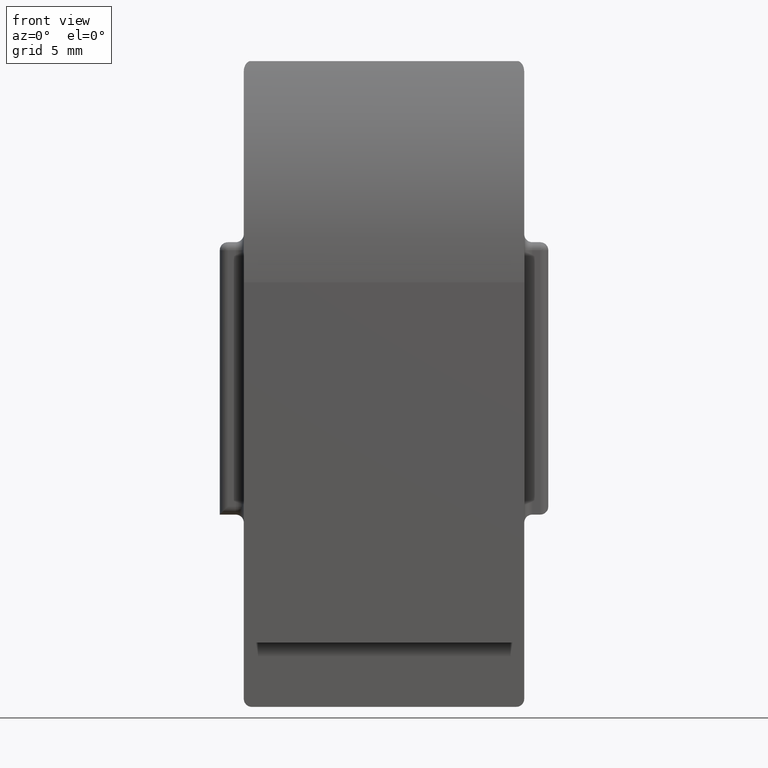
[diagram: clean part render]
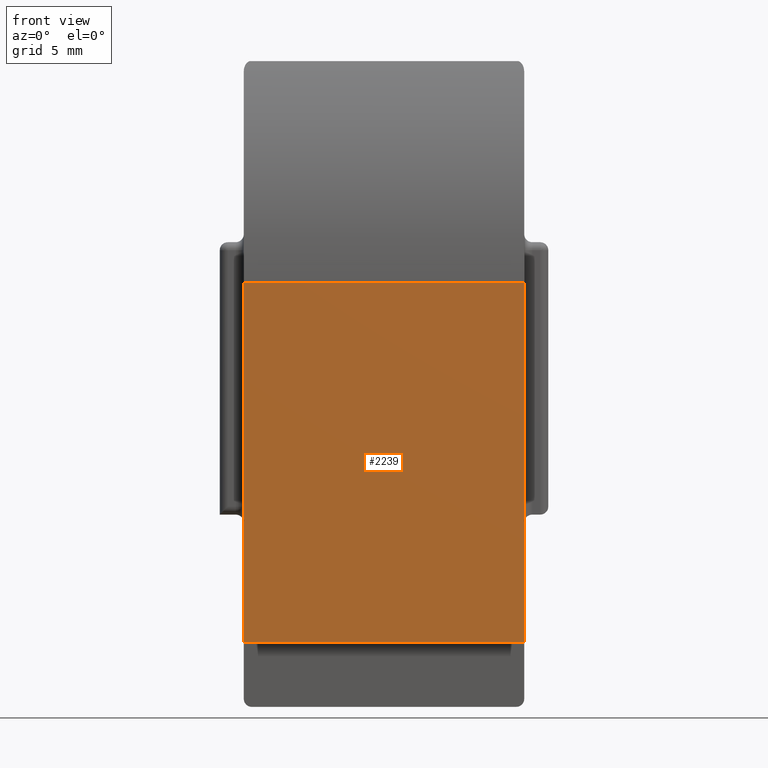
[diagram: same view with one face highlighted and labeled with its STEP entity id]
A machine part, front view. The second image highlights one B-rep face of the part: STEP entity #2239.
In plain terms, the highlighted planar face has unit normal (0, -1, -0).
Its self-contained STEP definition (entity closure, byte-faithful):
#25 = ORIENTED_EDGE ( 'NONE', *, *, #1617, .F. ) ;
#61 = ORIENTED_EDGE ( 'NONE', *, *, #1579, .F. ) ;
#141 = ORIENTED_EDGE ( 'NONE', *, *, #2814, .T. ) ;
#143 = ORIENTED_EDGE ( 'NONE', *, *, #668, .T. ) ;
#232 = VECTOR ( 'NONE', #2565, 1000.000000000000000 ) ;
#277 = LINE ( 'NONE', #2557, #232 ) ;
#329 = AXIS2_PLACEMENT_3D ( 'NONE', #511, #2661, #2491 ) ;
#444 = CARTESIAN_POINT ( 'NONE',  ( 17.50000000000000000, -1.040834085586084300E-014, -2.081668171172168500E-014 ) ) ;
#511 = CARTESIAN_POINT ( 'NONE',  ( 17.50000000000000000, -1.040834085586084300E-014, 0.0000000000000000000 ) ) ;
#558 = FACE_OUTER_BOUND ( 'NONE', #1425, .T. ) ;
#668 = EDGE_CURVE ( 'NONE', #3016, #1472, #277, .T. ) ;
#1021 = CARTESIAN_POINT ( 'NONE',  ( 0.0000000000000000000, -1.040834085586084300E-014, 0.0000000000000000000 ) ) ;
#1042 = DIRECTION ( 'NONE',  ( 0.0000000000000000000, -1.541976423090493200E-016, 1.000000000000000000 ) ) ;
#1065 = VECTOR ( 'NONE', #2868, 1000.000000000000000 ) ;
#1081 = CARTESIAN_POINT ( 'NONE',  ( 17.50000000000000000, -1.040834085586084300E-014, -2.081668171172168500E-014 ) ) ;
#1088 = DIRECTION ( 'NONE',  ( -1.000000000000000000, -0.0000000000000000000, -0.0000000000000000000 ) ) ;
#1181 = LINE ( 'NONE', #2941, #1065 ) ;
#1239 = CARTESIAN_POINT ( 'NONE',  ( 0.0000000000000000000, -1.387778780781445700E-014, 22.50000000000001100 ) ) ;
#1289 = CARTESIAN_POINT ( 'NONE',  ( 0.0000000000000000000, -1.040834085586084300E-014, -2.081668171172168500E-014 ) ) ;
#1425 = EDGE_LOOP ( 'NONE', ( #25, #61, #141, #143 ) ) ;
#1472 = VERTEX_POINT ( 'NONE', #1239 ) ;
#1517 = CARTESIAN_POINT ( 'NONE',  ( 17.50000000000000000, -1.387778780781445700E-014, 22.50000000000001100 ) ) ;
#1579 = EDGE_CURVE ( 'NONE', #2780, #3041, #2001, .T. ) ;
#1617 = EDGE_CURVE ( 'NONE', #3041, #1472, #1967, .T. ) ;
#1912 = VECTOR ( 'NONE', #1042, 1000.000000000000000 ) ;
#1967 = LINE ( 'NONE', #1021, #1912 ) ;
#1970 = VECTOR ( 'NONE', #1088, 1000.000000000000000 ) ;
#2001 = LINE ( 'NONE', #1081, #1970 ) ;
#2239 = ADVANCED_FACE ( 'NONE', ( #558 ), #2864, .T. ) ;
#2491 = DIRECTION ( 'NONE',  ( 0.0000000000000000000, 1.541976423090493200E-016, -1.000000000000000000 ) ) ;
#2557 = CARTESIAN_POINT ( 'NONE',  ( 17.50000000000000000, -1.387778780781445700E-014, 22.50000000000001100 ) ) ;
#2565 = DIRECTION ( 'NONE',  ( -1.000000000000000000, -0.0000000000000000000, -0.0000000000000000000 ) ) ;
#2661 = DIRECTION ( 'NONE',  ( 0.0000000000000000000, -1.000000000000000000, -1.541976423090493200E-016 ) ) ;
#2780 = VERTEX_POINT ( 'NONE', #444 ) ;
#2814 = EDGE_CURVE ( 'NONE', #2780, #3016, #1181, .T. ) ;
#2864 = PLANE ( 'NONE',  #329 ) ;
#2868 = DIRECTION ( 'NONE',  ( 0.0000000000000000000, -1.541976423090493200E-016, 1.000000000000000000 ) ) ;
#2941 = CARTESIAN_POINT ( 'NONE',  ( 17.50000000000000000, -1.040834085586084300E-014, 0.0000000000000000000 ) ) ;
#3016 = VERTEX_POINT ( 'NONE', #1517 ) ;
#3041 = VERTEX_POINT ( 'NONE', #1289 ) ;